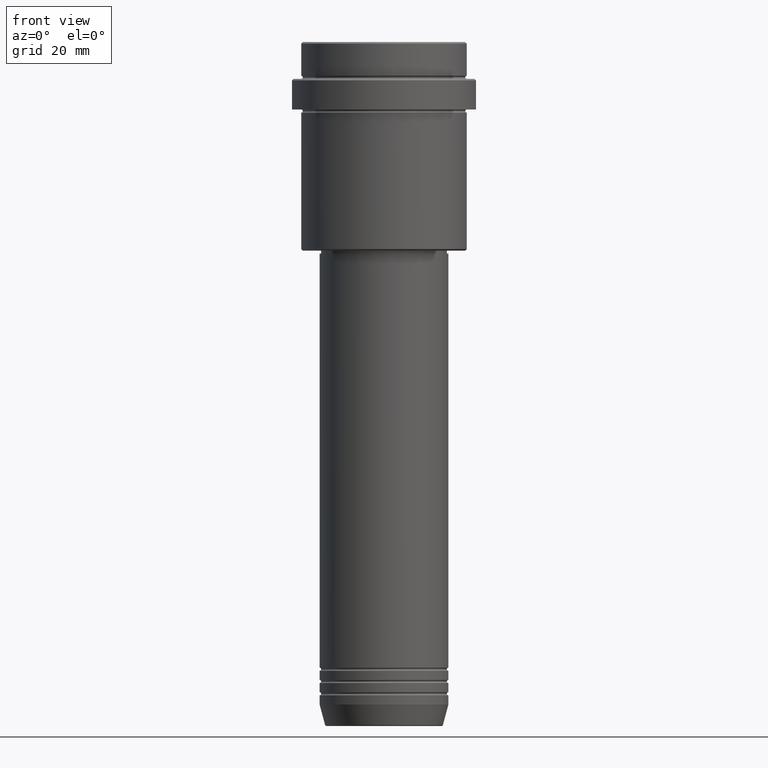
[diagram: clean part render]
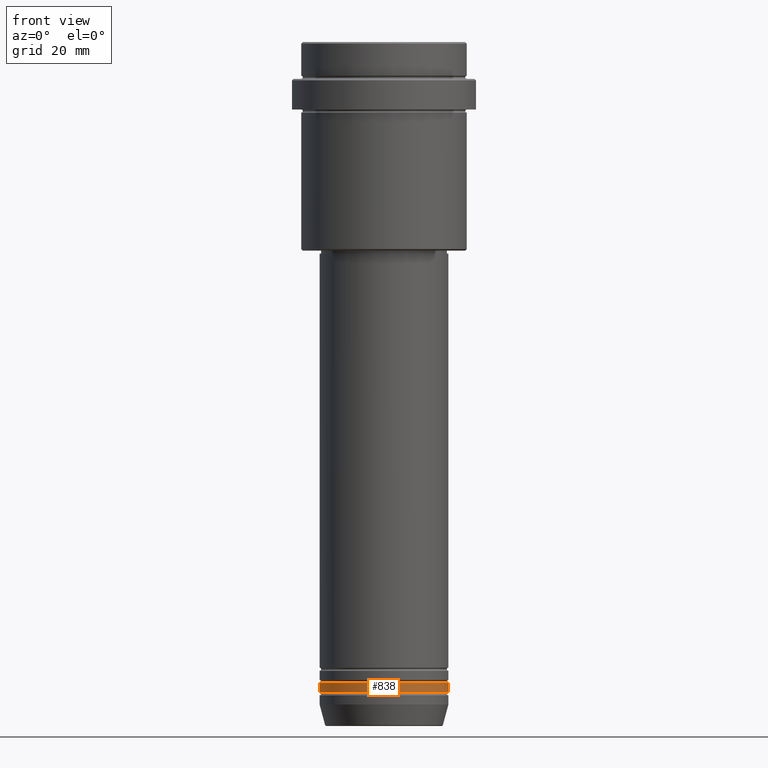
[diagram: same view with one face highlighted and labeled with its STEP entity id]
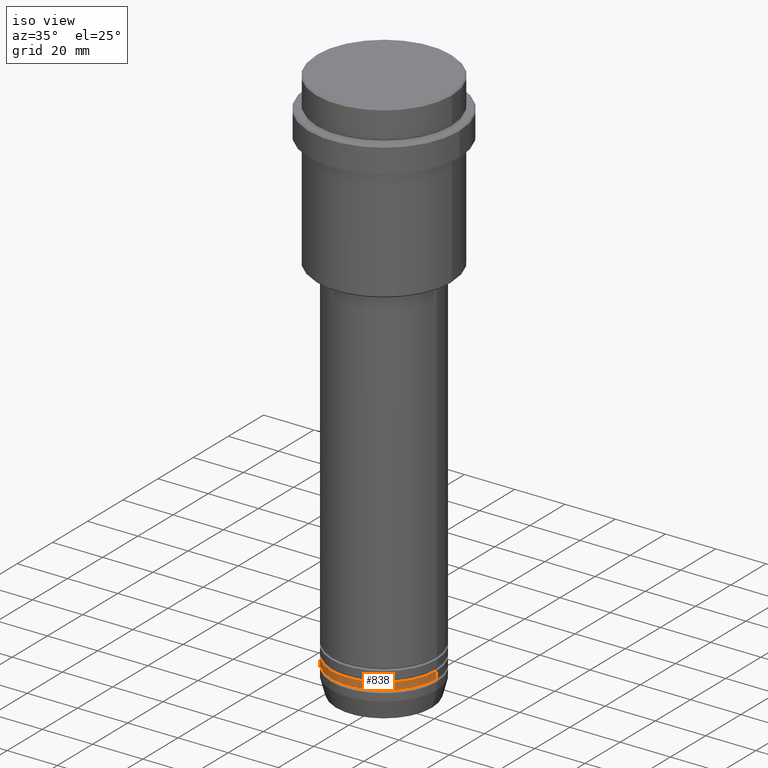
[diagram: same view with one face highlighted and labeled with its STEP entity id]
A machine part, front view. The second image highlights one B-rep face of the part: STEP entity #838.
A second angle (iso view) of the same face is appended — the face is thin or edge-on in the first view.
In plain terms, the highlighted cylindrical surface (partial cylindrical patch) has radius 21 mm, axis along (-0, -0, 1).
Its self-contained STEP definition (entity closure, byte-faithful):
#12 = VERTEX_POINT ( 'NONE', #996 ) ;
#19 = VERTEX_POINT ( 'NONE', #869 ) ;
#207 = VECTOR ( 'NONE', #545, 1000.000000000000000 ) ;
#219 = EDGE_CURVE ( 'NONE', #819, #454, #1334, .T. ) ;
#247 = ORIENTED_EDGE ( 'NONE', *, *, #646, .F. ) ;
#256 = CIRCLE ( 'NONE', #1402, 21.00000000000000000 ) ;
#257 = CARTESIAN_POINT ( 'NONE',  ( -21.00000000000000000, 2.571758278209441661E-15, 0.000000000000000000 ) ) ;
#263 = CARTESIAN_POINT ( 'NONE',  ( 0.000000000000000000, 0.000000000000000000, -208.9999999999998579 ) ) ;
#315 = LINE ( 'NONE', #1186, #207 ) ;
#354 = AXIS2_PLACEMENT_3D ( 'NONE', #626, #404, #1157 ) ;
#361 = ORIENTED_EDGE ( 'NONE', *, *, #219, .T. ) ;
#396 = AXIS2_PLACEMENT_3D ( 'NONE', #713, #603, #496 ) ;
#404 = DIRECTION ( 'NONE',  ( -0.000000000000000000, -0.000000000000000000, 1.000000000000000000 ) ) ;
#454 = VERTEX_POINT ( 'NONE', #1091 ) ;
#496 = DIRECTION ( 'NONE',  ( 1.000000000000000000, 0.000000000000000000, 0.000000000000000000 ) ) ;
#545 = DIRECTION ( 'NONE',  ( -0.000000000000000000, -0.000000000000000000, 1.000000000000000000 ) ) ;
#557 = ORIENTED_EDGE ( 'NONE', *, *, #972, .T. ) ;
#603 = DIRECTION ( 'NONE',  ( -0.000000000000000000, -0.000000000000000000, 1.000000000000000000 ) ) ;
#607 = DIRECTION ( 'NONE',  ( -0.000000000000000000, -0.000000000000000000, 1.000000000000000000 ) ) ;
#626 = CARTESIAN_POINT ( 'NONE',  ( 0.000000000000000000, 0.000000000000000000, 0.000000000000000000 ) ) ;
#635 = CYLINDRICAL_SURFACE ( 'NONE', #354, 21.00000000000000000 ) ;
#646 = EDGE_CURVE ( 'NONE', #819, #19, #908, .T. ) ;
#713 = CARTESIAN_POINT ( 'NONE',  ( 0.000000000000000000, 0.000000000000000000, -211.9999999999998579 ) ) ;
#748 = FACE_OUTER_BOUND ( 'NONE', #827, .T. ) ;
#752 = EDGE_CURVE ( 'NONE', #19, #12, #256, .T. ) ;
#819 = VERTEX_POINT ( 'NONE', #839 ) ;
#827 = EDGE_LOOP ( 'NONE', ( #247, #361, #557, #895 ) ) ;
#838 = ADVANCED_FACE ( 'NONE', ( #748 ), #635, .T. ) ;
#839 = CARTESIAN_POINT ( 'NONE',  ( -21.00000000000000000, 2.571758278209441661E-15, -211.9999999999998579 ) ) ;
#869 = CARTESIAN_POINT ( 'NONE',  ( -21.00000000000000000, 2.571758278209441661E-15, -208.9999999999998579 ) ) ;
#895 = ORIENTED_EDGE ( 'NONE', *, *, #752, .F. ) ;
#908 = LINE ( 'NONE', #257, #1150 ) ;
#972 = EDGE_CURVE ( 'NONE', #454, #12, #315, .T. ) ;
#996 = CARTESIAN_POINT ( 'NONE',  ( 21.00000000000000000, 0.000000000000000000, -208.9999999999998579 ) ) ;
#1091 = CARTESIAN_POINT ( 'NONE',  ( 21.00000000000000000, 0.000000000000000000, -211.9999999999998579 ) ) ;
#1142 = DIRECTION ( 'NONE',  ( -0.000000000000000000, -0.000000000000000000, 1.000000000000000000 ) ) ;
#1150 = VECTOR ( 'NONE', #607, 1000.000000000000000 ) ;
#1157 = DIRECTION ( 'NONE',  ( 1.000000000000000000, 0.000000000000000000, 0.000000000000000000 ) ) ;
#1186 = CARTESIAN_POINT ( 'NONE',  ( 21.00000000000000000, 0.000000000000000000, 0.000000000000000000 ) ) ;
#1334 = CIRCLE ( 'NONE', #396, 21.00000000000000000 ) ;
#1354 = DIRECTION ( 'NONE',  ( 1.000000000000000000, 0.000000000000000000, 0.000000000000000000 ) ) ;
#1402 = AXIS2_PLACEMENT_3D ( 'NONE', #263, #1142, #1354 ) ;